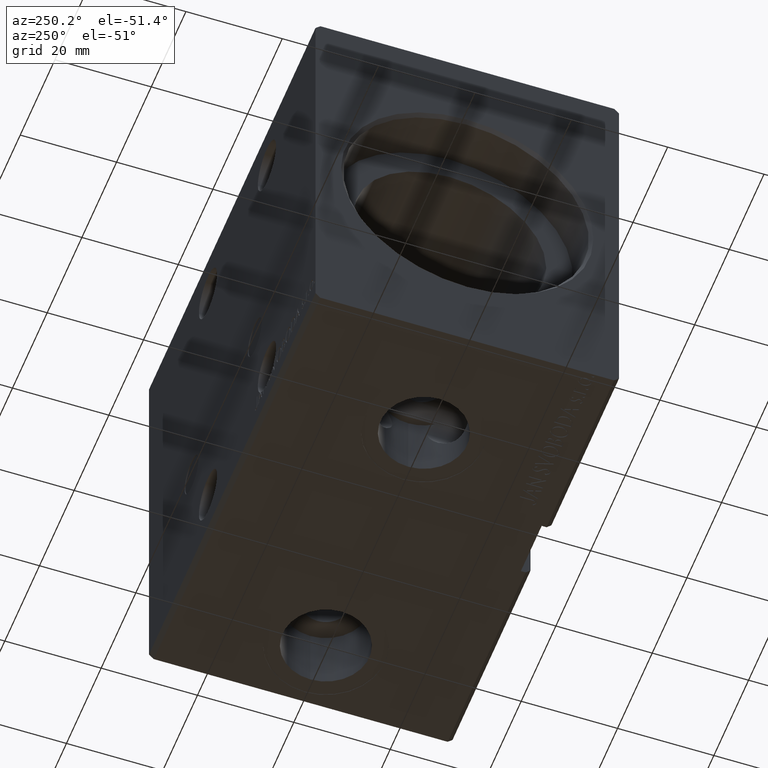
[diagram: clean part render]
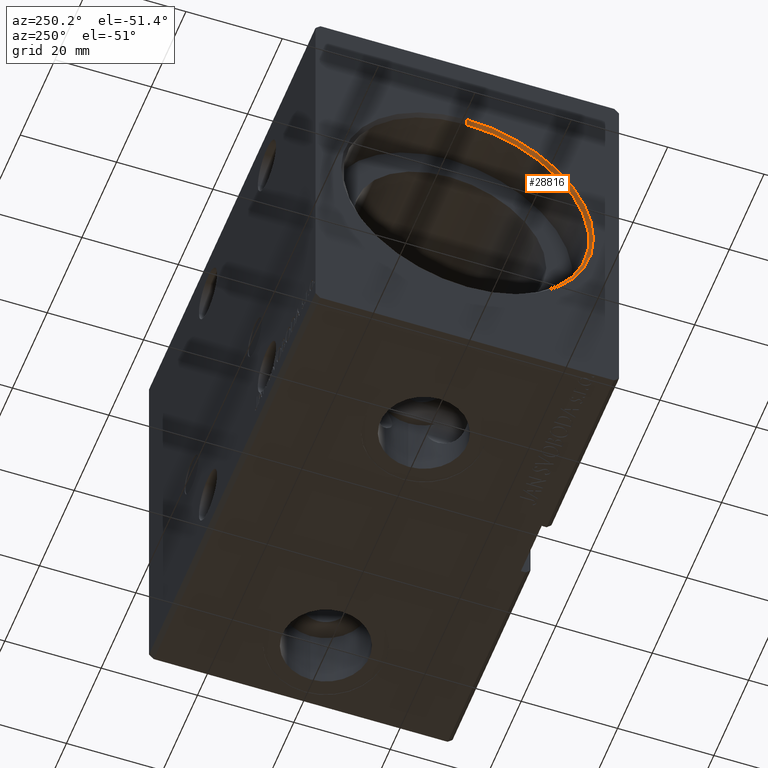
[diagram: same view with one face highlighted and labeled with its STEP entity id]
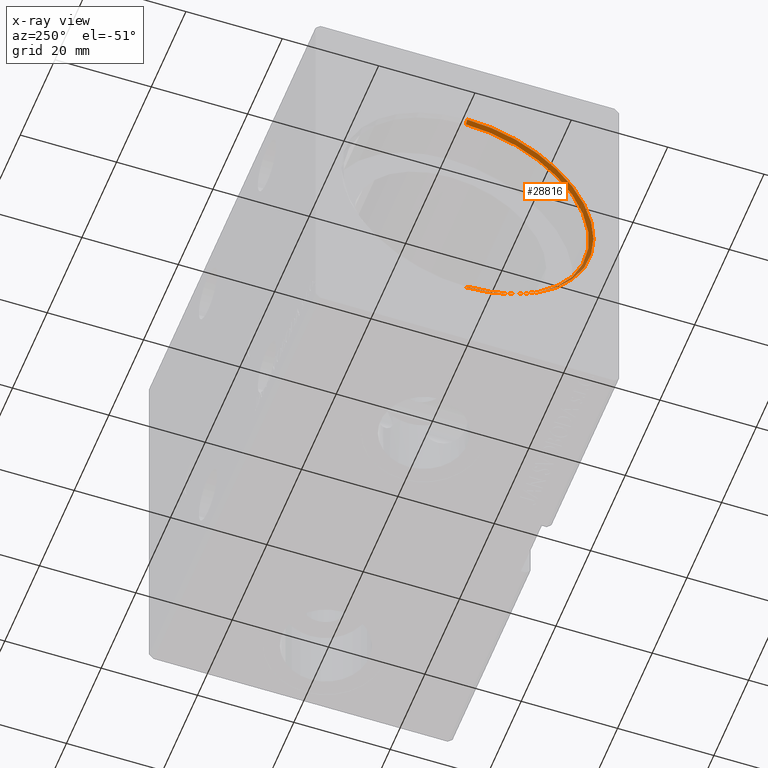
[diagram: x-ray of the same camera — body ghosted, the highlighted face saturated]
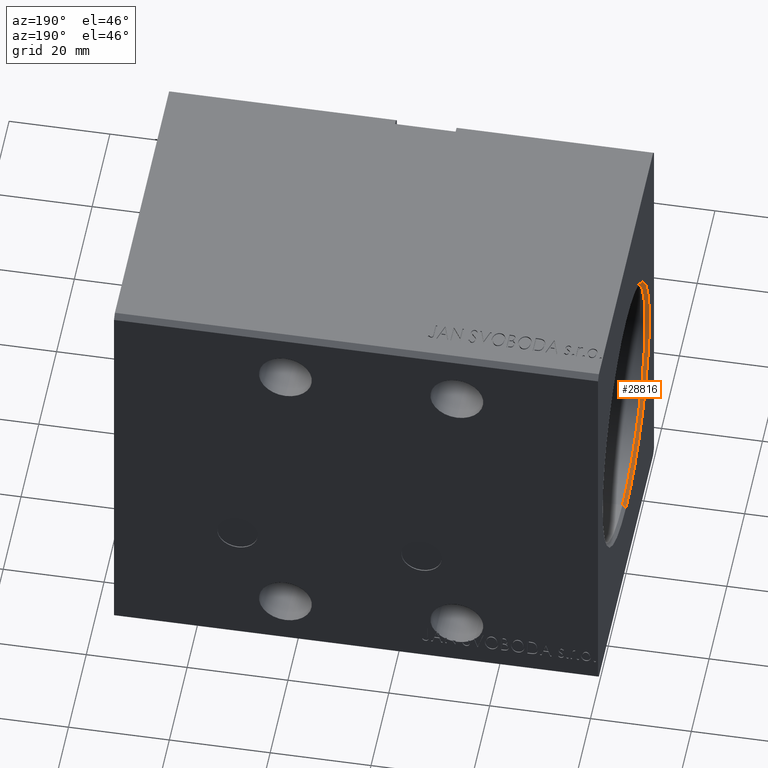
[diagram: same view with one face highlighted and labeled with its STEP entity id]
A machine part, auxiliary view. The second image highlights one B-rep face of the part: STEP entity #28816.
The next image is the same camera in x-ray: the body ghosted, the highlighted face saturated — about 0% of this face is hidden behind the body in this view.
A second angle (auxiliary view) of the same face is appended — the face is thin or edge-on in the first view.
In plain terms, the highlighted conical surface has half-angle 45 deg.
Its self-contained STEP definition (entity closure, byte-faithful):
#538 = CIRCLE ( 'NONE', #1875, 25.50000000000000000 ) ;
#1614 = VERTEX_POINT ( 'NONE', #22104 ) ;
#1875 = AXIS2_PLACEMENT_3D ( 'NONE', #9388, #18723, #31334 ) ;
#1939 = CARTESIAN_POINT ( 'NONE',  ( 0.6999999999999784173, 0.000000000000000000, 25.50000000000000000 ) ) ;
#2005 = DIRECTION ( 'NONE',  ( 0.000000000000000000, 0.000000000000000000, 1.000000000000000000 ) ) ;
#2214 = DIRECTION ( 'NONE',  ( -1.000000000000000000, 0.000000000000000000, 0.000000000000000000 ) ) ;
#2617 = FACE_OUTER_BOUND ( 'NONE', #7342, .T. ) ;
#4043 = DIRECTION ( 'NONE',  ( 0.000000000000000000, 0.000000000000000000, -1.000000000000000000 ) ) ;
#4794 = EDGE_CURVE ( 'NONE', #1614, #12333, #538, .T. ) ;
#5420 = EDGE_CURVE ( 'NONE', #1614, #18509, #19384, .T. ) ;
#6563 = CIRCLE ( 'NONE', #23795, 26.19999999999998863 ) ;
#6650 = VECTOR ( 'NONE', #7533, 1000.000000000000000 ) ;
#7342 = EDGE_LOOP ( 'NONE', ( #17052, #27500, #20189, #9754 ) ) ;
#7362 = AXIS2_PLACEMENT_3D ( 'NONE', #8013, #2214, #2005 ) ;
#7533 = DIRECTION ( 'NONE',  ( -0.7071067811865422437, 0.000000000000000000, 0.7071067811865527908 ) ) ;
#7977 = CARTESIAN_POINT ( 'NONE',  ( 0.6999999999999784173, 0.000000000000000000, 25.50000000000000000 ) ) ;
#8013 = CARTESIAN_POINT ( 'NONE',  ( 0.6999999999999784173, 0.000000000000000000, 0.000000000000000000 ) ) ;
#9388 = CARTESIAN_POINT ( 'NONE',  ( 0.6999999999999784173, 0.000000000000000000, 0.000000000000000000 ) ) ;
#9754 = ORIENTED_EDGE ( 'NONE', *, *, #27299, .F. ) ;
#12333 = VERTEX_POINT ( 'NONE', #7977 ) ;
#17052 = ORIENTED_EDGE ( 'NONE', *, *, #4794, .F. ) ;
#18352 = CARTESIAN_POINT ( 'NONE',  ( 0.000000000000000000, 0.000000000000000000, 26.19999999999998863 ) ) ;
#18509 = VERTEX_POINT ( 'NONE', #23510 ) ;
#18723 = DIRECTION ( 'NONE',  ( -1.000000000000000000, 0.000000000000000000, 0.000000000000000000 ) ) ;
#19384 = LINE ( 'NONE', #22898, #32307 ) ;
#20189 = ORIENTED_EDGE ( 'NONE', *, *, #35859, .F. ) ;
#22104 = CARTESIAN_POINT ( 'NONE',  ( 0.6999999999999784173, 3.122849337825750222E-15, -25.50000000000000000 ) ) ;
#22898 = CARTESIAN_POINT ( 'NONE',  ( 0.6999999999999784173, 3.122849337825750222E-15, -25.50000000000000000 ) ) ;
#23510 = CARTESIAN_POINT ( 'NONE',  ( 0.000000000000000000, 3.208574613766063722E-15, -26.19999999999998863 ) ) ;
#23795 = AXIS2_PLACEMENT_3D ( 'NONE', #35524, #35324, #4043 ) ;
#27299 = EDGE_CURVE ( 'NONE', #12333, #36710, #30325, .T. ) ;
#27500 = ORIENTED_EDGE ( 'NONE', *, *, #5420, .T. ) ;
#28816 = ADVANCED_FACE ( 'NONE', ( #2617 ), #39089, .F. ) ;
#30325 = LINE ( 'NONE', #1939, #6650 ) ;
#31334 = DIRECTION ( 'NONE',  ( 0.000000000000000000, 0.000000000000000000, -1.000000000000000000 ) ) ;
#32307 = VECTOR ( 'NONE', #35717, 1000.000000000000000 ) ;
#35324 = DIRECTION ( 'NONE',  ( 1.000000000000000000, 0.000000000000000000, 0.000000000000000000 ) ) ;
#35524 = CARTESIAN_POINT ( 'NONE',  ( 0.000000000000000000, 0.000000000000000000, 0.000000000000000000 ) ) ;
#35717 = DIRECTION ( 'NONE',  ( -0.7071067811865422437, 8.659560562354996953E-17, -0.7071067811865527908 ) ) ;
#35859 = EDGE_CURVE ( 'NONE', #36710, #18509, #6563, .T. ) ;
#36710 = VERTEX_POINT ( 'NONE', #18352 ) ;
#39089 = CONICAL_SURFACE ( 'NONE', #7362, 25.50000000000000000, 0.7853981633974557175 ) ;